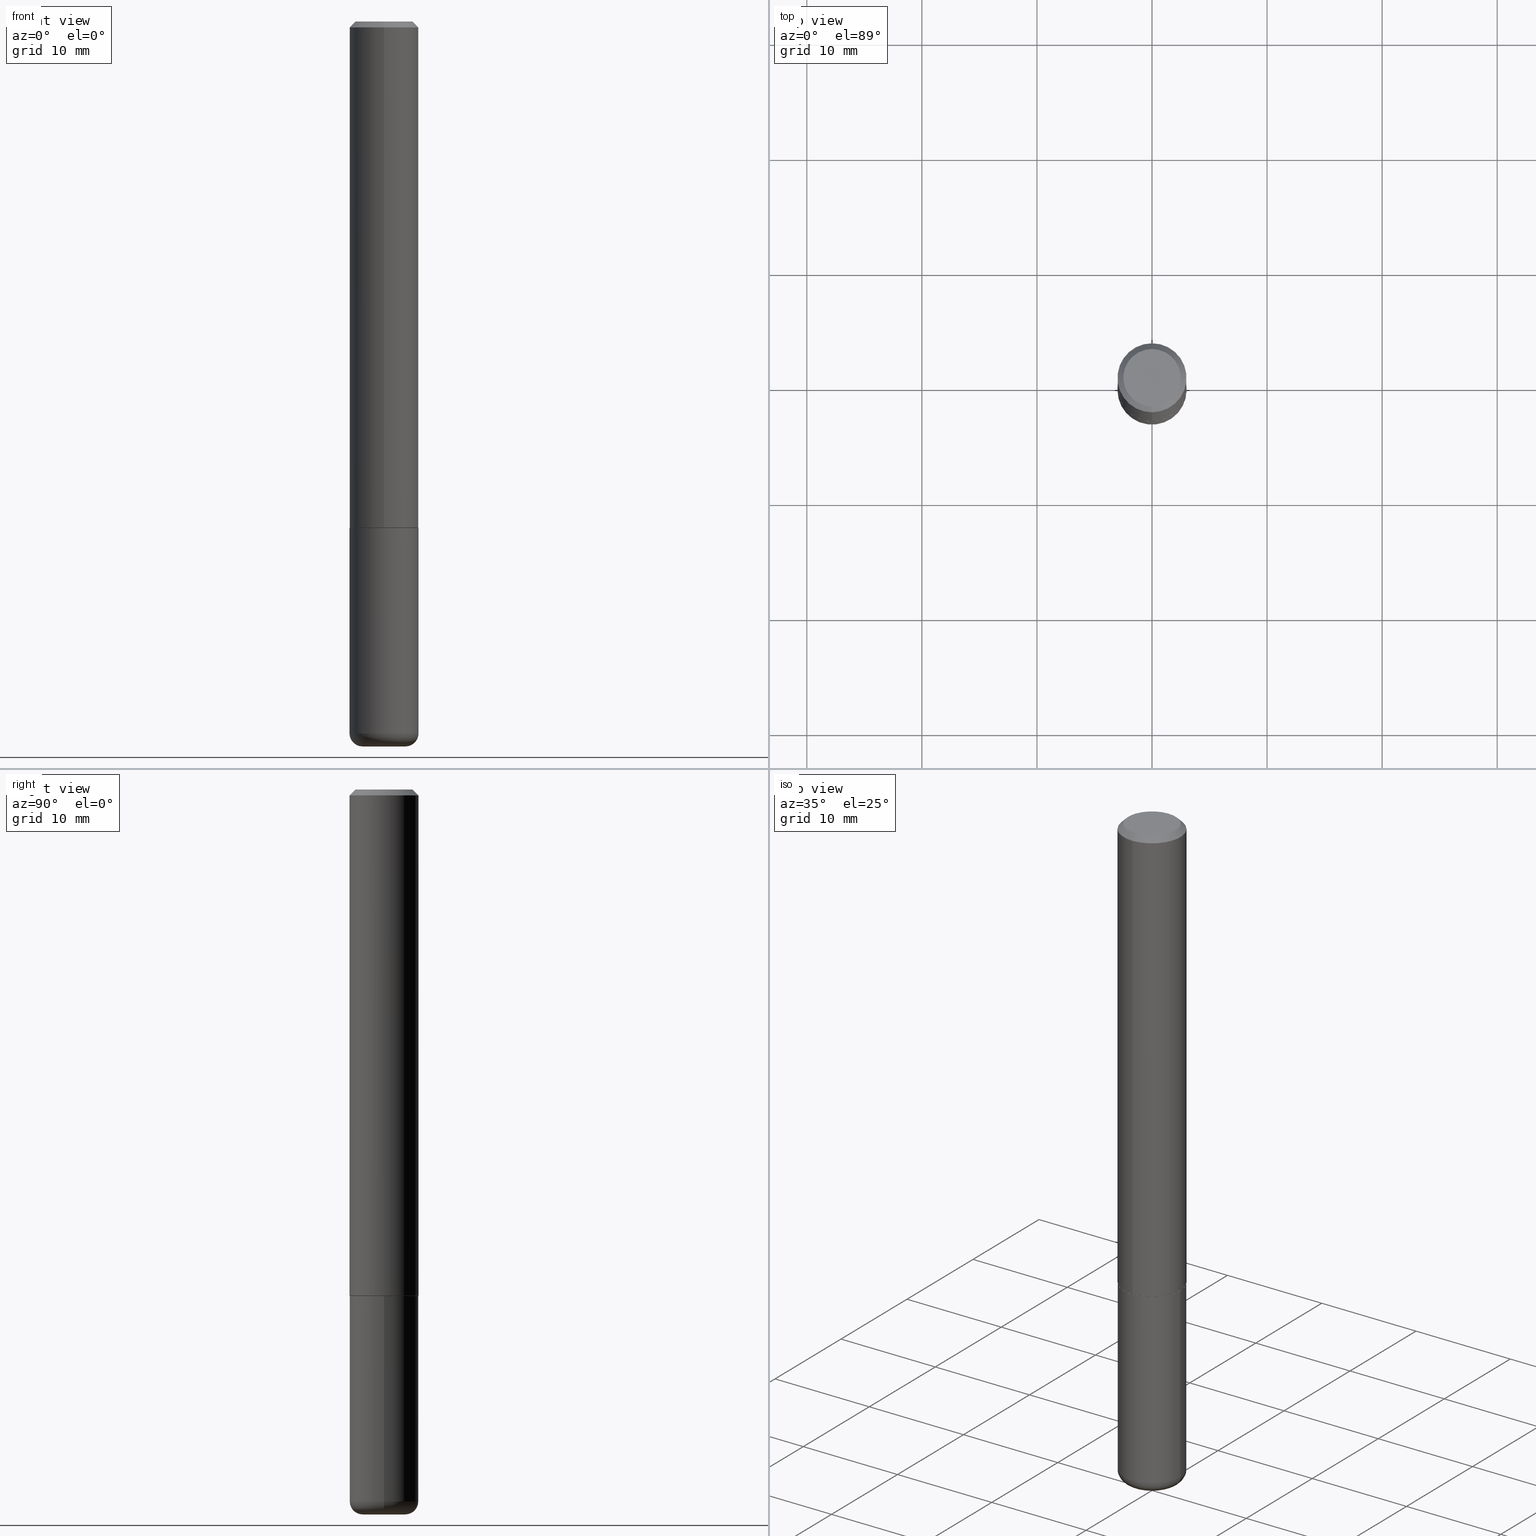
[diagram: canonical four-view strip — front | top / right | iso, engineering-drawing reading convention]
A machine part, canonical four-view strip (front | top / right | iso — engineering-drawing reading convention). The complete STEP part file that produces these views, byte-faithful:
ISO-10303-21;
HEADER;
FILE_DESCRIPTION (( 'STEP AP203' ),
    '1' );
FILE_NAME ('46107.STEP',
    '2024-03-04T16:53:47',
    ( '' ),
    ( '' ),
    'SwSTEP 2.0',
    'SolidWorks 2023',
    '' );
FILE_SCHEMA (( 'CONFIG_CONTROL_DESIGN' ));
ENDSEC;

DATA;
#1 = EDGE_CURVE ( 'NONE', #177, #316, #366, .T. ) ;
#2 = VERTEX_POINT ( 'NONE', #59 ) ;
#3 = EDGE_CURVE ( 'NONE', #177, #330, #373, .T. ) ;
#4 = CARTESIAN_POINT ( 'NONE',  ( 0.000000000000000000, 0.000000000000000000, 0.000000000000000000 ) ) ;
#5 = AXIS2_PLACEMENT_3D ( 'NONE', #404, #307, #309 ) ;
#6 = CIRCLE ( 'NONE', #187, 0.04490000000000033548 ) ;
#7 = APPROVAL_DATE_TIME ( #200, #198 ) ;
#8 = COORDINATED_UNIVERSAL_TIME_OFFSET ( 5, 0, .BEHIND. ) ;
#9 = ORIENTED_EDGE ( 'NONE', *, *, #171, .T. ) ;
#10 = EDGE_CURVE ( 'NONE', #330, #321, #289, .T. ) ;
#11 = DIRECTION ( 'NONE',  ( -2.449854300640825243E-29, 3.485201061175756275E-15, 1.000000000000000000 ) ) ;
#12 = AXIS2_PLACEMENT_3D ( 'NONE', #154, #347, #292 ) ;
#13 = DIRECTION ( 'NONE',  ( -2.445468806185136597E-29, 3.491481338843145583E-15, 1.000000000000000000 ) ) ;
#14 = CALENDAR_DATE ( 2024, 4, 3 ) ;
#15 = CIRCLE ( 'NONE', #241, 0.09809999999999993725 ) ;
#16 = ADVANCED_FACE ( 'NONE', ( #236 ), #342, .T. ) ;
#17 = EDGE_LOOP ( 'NONE', ( #294, #233, #215, #93 ) ) ;
#18 = LINE ( 'NONE', #238, #270 ) ;
#19 = EDGE_CURVE ( 'NONE', #189, #321, #412, .T. ) ;
#20 = CARTESIAN_POINT ( 'NONE',  ( 4.241432750699461520E-29, -6.033928597213587157E-15, -1.731300000000000283 ) ) ;
#21 = AXIS2_PLACEMENT_3D ( 'NONE', #217, #163, #185 ) ;
#22 = CARTESIAN_POINT ( 'NONE',  ( -6.862147577486463585E-29, -2.717304296441968841E-14, -2.480300000000000171 ) ) ;
#23 = CARTESIAN_POINT ( 'NONE',  ( -2.808359658214252321E-45, 3.995216392424341374E-31, 1.146337419935401982E-16 ) ) ;
#24 = ADVANCED_FACE ( 'NONE', ( #317 ), #286, .F. ) ;
#25 = VERTEX_POINT ( 'NONE', #322 ) ;
#26 = UNCERTAINTY_MEASURE_WITH_UNIT (LENGTH_MEASURE( 1.000000000000000082E-05 ), #197, 'distance_accuracy_value', 'NONE');
#27 = CARTESIAN_POINT ( 'NONE',  ( -8.177049295570191568E-16, -0.1171000000000060187, -1.732299999999999729 ) ) ;
#28 = PERSON_AND_ORGANIZATION_ROLE ( 'design_supplier' ) ;
#29 = CARTESIAN_POINT ( 'NONE',  ( 0.000000000000000000, 0.000000000000000000, 0.000000000000000000 ) ) ;
#30 = ORIENTED_EDGE ( 'NONE', *, *, #151, .F. ) ;
#31 = CARTESIAN_POINT ( 'NONE',  ( 4.899708601281666006E-31, -6.970402122351533307E-17, -0.02000000000000006287 ) ) ;
#32 = ORIENTED_EDGE ( 'NONE', *, *, #415, .T. ) ;
#33 = EDGE_CURVE ( 'NONE', #316, #177, #240, .T. ) ;
#34 = ORIENTED_EDGE ( 'NONE', *, *, #210, .F. ) ;
#35 = DIRECTION ( 'NONE',  ( 6.982962677686265922E-15, 1.000000000000000000, -3.485201061175756670E-15 ) ) ;
#36 = ORIENTED_EDGE ( 'NONE', *, *, #167, .F. ) ;
#37 = LINE ( 'NONE', #383, #174 ) ;
#38 = EDGE_LOOP ( 'NONE', ( #153, #130 ) ) ;
#39 = FACE_OUTER_BOUND ( 'NONE', #17, .T. ) ;
#40 = PRODUCT_DEFINITION ( 'UNKNOWN', '', #129, #276 ) ;
#41 = COORDINATED_UNIVERSAL_TIME_OFFSET ( 5, 0, .BEHIND. ) ;
#42 = ORIENTED_EDGE ( 'NONE', *, *, #272, .T. ) ;
#43 = CLOSED_SHELL ( 'NONE', ( #281, #156, #141, #331, #239, #16 ) ) ;
#44 = AXIS2_PLACEMENT_3D ( 'NONE', #327, #318, #323 ) ;
#45 = PERSON_AND_ORGANIZATION ( #178, #410 ) ;
#46 = CARTESIAN_POINT ( 'NONE',  ( 0.000000000000000000, 0.000000000000000000, 0.000000000000000000 ) ) ;
#47 = ORIENTED_EDGE ( 'NONE', *, *, #10, .T. ) ;
#48 = CYLINDRICAL_SURFACE ( 'NONE', #111, 0.1181000000000001354 ) ;
#49 = CARTESIAN_POINT ( 'NONE',  ( 0.1181000000000001632, -9.327841544853347056E-15, -2.435400000000000453 ) ) ;
#50 = EDGE_CURVE ( 'NONE', #348, #61, #399, .T. ) ;
#51 = CARTESIAN_POINT ( 'NONE',  ( -2.808359658214252321E-45, 3.995216392424341374E-31, 1.146337419935401982E-16 ) ) ;
#52 = AXIS2_PLACEMENT_3D ( 'NONE', #46, #401, #365 ) ;
#53 = EDGE_LOOP ( 'NONE', ( #300, #42, #36, #30 ) ) ;
#54 = ORIENTED_EDGE ( 'NONE', *, *, #19, .F. ) ;
#55 = ORIENTED_EDGE ( 'NONE', *, *, #363, .F. ) ;
#56 = DIRECTION ( 'NONE',  ( -4.851104656540953231E-15, -0.7071067811865484609, -0.7071067811865465735 ) ) ;
#57 = AXIS2_PLACEMENT_3D ( 'NONE', #29, #150, #96 ) ;
#58 = ADVANCED_FACE ( 'NONE', ( #418 ), #408, .T. ) ;
#59 = CARTESIAN_POINT ( 'NONE',  ( 8.355982572539207845E-16, 0.1170999999999939312, -1.732300000000000173 ) ) ;
#60 = CARTESIAN_POINT ( 'NONE',  ( 6.065496279980995876E-29, -8.659921164732656913E-15, -2.480300000000001059 ) ) ;
#61 = VERTEX_POINT ( 'NONE', #355 ) ;
#62 = AXIS2_PLACEMENT_3D ( 'NONE', #405, #389, #211 ) ;
#63 = ORIENTED_EDGE ( 'NONE', *, *, #144, .T. ) ;
#64 = CC_DESIGN_PERSON_AND_ORGANIZATION_ASSIGNMENT ( #109, #235, ( #129 ) ) ;
#65 = DIRECTION ( 'NONE',  ( 1.000000000000000000, -6.982962677686265133E-15, 0.000000000000000000 ) ) ;
#66 = EDGE_LOOP ( 'NONE', ( #55, #379 ) ) ;
#67 = DIRECTION ( 'NONE',  ( 2.449854300640825243E-29, -3.485201061175756275E-15, -1.000000000000000000 ) ) ;
#68 = COORDINATED_UNIVERSAL_TIME_OFFSET ( 5, 0, .BEHIND. ) ;
#69 = ORIENTED_EDGE ( 'NONE', *, *, #196, .F. ) ;
#70 = AXIS2_PLACEMENT_3D ( 'NONE', #183, #244, #377 ) ;
#71 = AXIS2_PLACEMENT_3D ( 'NONE', #376, #214, #88 ) ;
#72 = DIMENSIONAL_EXPONENTS ( 1.000000000000000000, 0.000000000000000000, 0.000000000000000000, 0.000000000000000000, 0.000000000000000000, 0.000000000000000000, 0.000000000000000000 ) ;
#73 = CALENDAR_DATE ( 2024, 4, 3 ) ;
#74 = PRODUCT ( '46107', '46107', '', ( #113 ) ) ;
#75 = EDGE_CURVE ( 'NONE', #2, #316, #37, .T. ) ;
#76 = ORIENTED_EDGE ( 'NONE', *, *, #167, .T. ) ;
#77 = DIRECTION ( 'NONE',  ( 1.000000000000000000, -6.982962677686261977E-15, 4.883557194083111780E-29 ) ) ;
#78 = FACE_OUTER_BOUND ( 'NONE', #132, .T. ) ;
#79 = FACE_OUTER_BOUND ( 'NONE', #182, .T. ) ;
#80 = AXIS2_PLACEMENT_3D ( 'NONE', #298, #173, #77 ) ;
#81 = APPROVAL ( #359, 'UNSPECIFIED' ) ;
#82 = ORIENTED_EDGE ( 'NONE', *, *, #210, .T. ) ;
#83 = DATE_TIME_ROLE ( 'creation_date' ) ;
#84 = CARTESIAN_POINT ( 'NONE',  ( 6.065496279980995876E-29, -8.659921164732656913E-15, -2.480300000000001059 ) ) ;
#85 = EDGE_CURVE ( 'NONE', #414, #102, #400, .T. ) ;
#86 = ORIENTED_EDGE ( 'NONE', *, *, #1, .F. ) ;
#87 = VECTOR ( 'NONE', #369, 39.37007874015748143 ) ;
#88 = DIRECTION ( 'NONE',  ( 1.000000000000000000, -6.982962677686273021E-15, 0.000000000000000000 ) ) ;
#89 = DIRECTION ( 'NONE',  ( -2.449854300640825243E-29, 3.485201061175756275E-15, 1.000000000000000000 ) ) ;
#90 = DIRECTION ( 'NONE',  ( -6.982962677686265922E-15, -1.000000000000000000, 2.332918867347791515E-15 ) ) ;
#91 = CIRCLE ( 'NONE', #313, 0.1180999999999999966 ) ;
#92 = CC_DESIGN_SECURITY_CLASSIFICATION ( #229, ( #129 ) ) ;
#93 = ORIENTED_EDGE ( 'NONE', *, *, #353, .T. ) ;
#94 = FACE_OUTER_BOUND ( 'NONE', #364, .T. ) ;
#95 = DIRECTION ( 'NONE',  ( -2.449854300640825243E-29, 3.485201061175756275E-15, 1.000000000000000000 ) ) ;
#96 = DIRECTION ( 'NONE',  ( 1.000000000000000000, -6.982962677686266711E-15, 4.876176775795936353E-29 ) ) ;
#97 = ORIENTED_EDGE ( 'NONE', *, *, #3, .F. ) ;
#98 = ADVANCED_FACE ( 'NONE', ( #157 ), #367, .T. ) ;
#99 = DIRECTION ( 'NONE',  ( 4.937700262164536998E-15, 0.7071067811865435759, -0.7071067811865514585 ) ) ;
#100 = DIRECTION ( 'NONE',  ( -2.449854300640825243E-29, 3.485201061175756275E-15, 1.000000000000000000 ) ) ;
#101 = EDGE_CURVE ( 'NONE', #212, #414, #334, .T. ) ;
#102 = VERTEX_POINT ( 'NONE', #357 ) ;
#103 = DIRECTION ( 'NONE',  ( 1.000000000000000000, -6.982962677686287221E-15, 0.000000000000000000 ) ) ;
#104 = PERSON_AND_ORGANIZATION_ROLE ( 'design_owner' ) ;
#105 = CONICAL_SURFACE ( 'NONE', #372, 0.1170999999999999819, 0.7853981633976704346 ) ;
#106 = LINE ( 'NONE', #199, #392 ) ;
#107 = ORIENTED_EDGE ( 'NONE', *, *, #101, .F. ) ;
#108 = PERSON_AND_ORGANIZATION ( #178, #410 ) ;
#109 = PERSON_AND_ORGANIZATION ( #178, #410 ) ;
#110 = VECTOR ( 'NONE', #99, 39.37007874015748143 ) ;
#111 = AXIS2_PLACEMENT_3D ( 'NONE', #4, #11, #332 ) ;
#112 = LINE ( 'NONE', #137, #87 ) ;
#113 = MECHANICAL_CONTEXT ( 'NONE', #209, 'mechanical' ) ;
#114 = CARTESIAN_POINT ( 'NONE',  ( -8.246878922347070446E-16, -0.1181000000000062417, -1.731299999999999617 ) ) ;
#115 = CIRCLE ( 'NONE', #71, 0.1180999999999999966 ) ;
#116 = MANIFOLD_SOLID_BREP ( 'Body-Move/Copy2[1]', #43 ) ;
#117 = EDGE_LOOP ( 'NONE', ( #69, #155, #47, #54 ) ) ;
#118 = DIRECTION ( 'NONE',  ( -2.445468806185136877E-29, 3.491481338843145188E-15, 1.000000000000000000 ) ) ;
#119 = CIRCLE ( 'NONE', #358, 0.1170999999999999819 ) ;
#120 = DIRECTION ( 'NONE',  ( -6.982962677686265922E-15, -1.000000000000000000, 3.485201061175756670E-15 ) ) ;
#121 = FACE_OUTER_BOUND ( 'NONE', #38, .T. ) ;
#122 = CC_DESIGN_DATE_AND_TIME_ASSIGNMENT ( #378, #319, ( #229 ) ) ;
#123 = VERTEX_POINT ( 'NONE', #27 ) ;
#124 = ORIENTED_EDGE ( 'NONE', *, *, #10, .F. ) ;
#125 = DIRECTION ( 'NONE',  ( -6.982962677686265922E-15, -1.000000000000000000, 2.332918867347791515E-15 ) ) ;
#126 = CARTESIAN_POINT ( 'NONE',  ( -0.1180999999999999966, -6.436572417015612133E-15, -1.732300000000000173 ) ) ;
#127 = CIRCLE ( 'NONE', #262, 0.07320000000000000118 ) ;
#128 = ORIENTED_EDGE ( 'NONE', *, *, #50, .T. ) ;
#129 = PRODUCT_DEFINITION_FORMATION_WITH_SPECIFIED_SOURCE ( 'ANY', '', #74, .NOT_KNOWN. ) ;
#130 = ORIENTED_EDGE ( 'NONE', *, *, #196, .T. ) ;
#131 = DIRECTION ( 'NONE',  ( -2.449854300640825243E-29, 3.485201061175756275E-15, 1.000000000000000000 ) ) ;
#132 = EDGE_LOOP ( 'NONE', ( #76, #128 ) ) ;
#133 = SECURITY_CLASSIFICATION_LEVEL ( 'unclassified' ) ;
#134 = ADVANCED_FACE ( 'NONE', ( #149 ), #277, .T. ) ;
#135 = APPROVAL_DATE_TIME ( #165, #81 ) ;
#136 = AXIS2_PLACEMENT_3D ( 'NONE', #51, #176, #305 ) ;
#137 = CARTESIAN_POINT ( 'NONE',  ( 0.1180999999999999966, -8.246878922347480654E-16, 5.758764772215000440E-30 ) ) ;
#138 = CC_DESIGN_PERSON_AND_ORGANIZATION_ASSIGNMENT ( #258, #228, ( #40 ) ) ;
#139 = COORDINATED_UNIVERSAL_TIME_OFFSET ( 5, 0, .BEHIND. ) ;
#140 = PERSON_AND_ORGANIZATION_ROLE ( 'classification_officer' ) ;
#141 = ADVANCED_FACE ( 'NONE', ( #78 ), #162, .F. ) ;
#142 = EDGE_LOOP ( 'NONE', ( #252, #287 ) ) ;
#143 = LINE ( 'NONE', #237, #188 ) ;
#144 = EDGE_CURVE ( 'NONE', #123, #177, #106, .T. ) ;
#145 = CARTESIAN_POINT ( 'NONE',  ( -8.246878922347489529E-16, -0.1181000000000001354, 4.116022453248573214E-16 ) ) ;
#146 = AXIS2_PLACEMENT_3D ( 'NONE', #409, #95, #120 ) ;
#147 = CARTESIAN_POINT ( 'NONE',  ( 4.243882605000101651E-29, -6.037413798274762511E-15, -1.732299999999999951 ) ) ;
#148 = DIRECTION ( 'NONE',  ( -2.449854300640825243E-29, 3.485201061175756275E-15, 1.000000000000000000 ) ) ;
#149 = FACE_OUTER_BOUND ( 'NONE', #312, .T. ) ;
#150 = DIRECTION ( 'NONE',  ( -2.445468806185136597E-29, 3.491481338843145583E-15, 1.000000000000000000 ) ) ;
#151 = EDGE_CURVE ( 'NONE', #414, #61, #112, .T. ) ;
#152 = CIRCLE ( 'NONE', #251, 0.1170999999999999819 ) ;
#153 = ORIENTED_EDGE ( 'NONE', *, *, #265, .T. ) ;
#154 = CARTESIAN_POINT ( 'NONE',  ( 4.243882605000101651E-29, -6.037413798274762511E-15, -1.732299999999999951 ) ) ;
#155 = ORIENTED_EDGE ( 'NONE', *, *, #207, .T. ) ;
#156 = ADVANCED_FACE ( 'NONE', ( #306 ), #385, .T. ) ;
#157 = FACE_OUTER_BOUND ( 'NONE', #117, .T. ) ;
#158 = AXIS2_PLACEMENT_3D ( 'NONE', #20, #89, #403 ) ;
#159 = EDGE_LOOP ( 'NONE', ( #161, #356, #86, #246 ) ) ;
#160 = APPROVAL_PERSON_ORGANIZATION ( #45, #406, #339 ) ;
#161 = ORIENTED_EDGE ( 'NONE', *, *, #363, .T. ) ;
#162 = PLANE ( 'NONE',  #62 ) ;
#163 = DIRECTION ( 'NONE',  ( 2.449854300640825243E-29, -3.485201061175756275E-15, -1.000000000000000000 ) ) ;
#164 = FACE_OUTER_BOUND ( 'NONE', #291, .T. ) ;
#165 = DATE_AND_TIME ( #297, #393 ) ;
#166 = VERTEX_POINT ( 'NONE', #301 ) ;
#167 = EDGE_CURVE ( 'NONE', #61, #348, #91, .T. ) ;
#168 = APPROVAL_DATE_TIME ( #361, #406 ) ;
#169 = LENGTH_MEASURE_WITH_UNIT ( LENGTH_MEASURE( 0.02539999999999999897 ), #371 );
#170 = ADVANCED_BREP_SHAPE_REPRESENTATION ( '46107', ( #116, #397, #52 ), #222 ) ;
#171 = EDGE_CURVE ( 'NONE', #166, #212, #127, .T. ) ;
#172 = DIRECTION ( 'NONE',  ( -2.449854300640825243E-29, 3.485201061175756670E-15, 1.000000000000000000 ) ) ;
#173 = DIRECTION ( 'NONE',  ( -2.445468806185136597E-29, 3.491481338843145583E-15, 1.000000000000000000 ) ) ;
#174 = VECTOR ( 'NONE', #320, 39.37007874015748854 ) ;
#175 = AXIS2_PLACEMENT_3D ( 'NONE', #60, #279, #411 ) ;
#176 = DIRECTION ( 'NONE',  ( -2.449854300640825243E-29, 3.485201061175756275E-15, 1.000000000000000000 ) ) ;
#177 = VERTEX_POINT ( 'NONE', #114 ) ;
#178 = PERSON ( 'UNSPECIFIED', 'UNSPECIFIED', 'UNSPECIFIED', ('UNSPECIFIED'), ('UNSPECIFIED'), ('UNSPECIFIED') ) ;
#179 = PRODUCT_RELATED_PRODUCT_CATEGORY ( 'detail', '', ( #74 ) ) ;
#180 = AXIS2_PLACEMENT_3D ( 'NONE', #402, #407, #374 ) ;
#181 = CARTESIAN_POINT ( 'NONE',  ( -0.07319999999999998730, -7.983036370042204364E-15, -2.435400000000000009 ) ) ;
#182 = EDGE_LOOP ( 'NONE', ( #248, #32, #124, #97 ) ) ;
#183 = CARTESIAN_POINT ( 'NONE',  ( 4.241432750699461520E-29, -6.033928597213587157E-15, -1.731300000000000283 ) ) ;
#184 = ORIENTED_EDGE ( 'NONE', *, *, #370, .T. ) ;
#185 = DIRECTION ( 'NONE',  ( 6.982962677686265922E-15, 1.000000000000000000, -3.469747663417776213E-15 ) ) ;
#186 = CLOSED_SHELL ( 'NONE', ( #205, #398, #98, #343, #134, #58, #24, #314 ) ) ;
#187 = AXIS2_PLACEMENT_3D ( 'NONE', #181, #310, #274 ) ;
#188 = VECTOR ( 'NONE', #56, 39.37007874015748143 ) ;
#189 = VERTEX_POINT ( 'NONE', #206 ) ;
#190 = DIRECTION ( 'NONE',  ( -1.000000000000000000, 6.982962677686265922E-15, -4.876176775795935793E-29 ) ) ;
#191 = DIRECTION ( 'NONE',  ( -6.982962677686265922E-15, -1.000000000000000000, 3.469747663417776213E-15 ) ) ;
#192 = CARTESIAN_POINT ( 'NONE',  ( 4.243882605000101651E-29, -6.037413798274762511E-15, -1.732299999999999951 ) ) ;
#193 = ORIENTED_EDGE ( 'NONE', *, *, #353, .F. ) ;
#194 = AXIS2_PLACEMENT_3D ( 'NONE', #416, #288, #103 ) ;
#195 = CC_DESIGN_APPROVAL ( #198, ( #129 ) ) ;
#196 = EDGE_CURVE ( 'NONE', #25, #189, #340, .T. ) ;
#197 =( CONVERSION_BASED_UNIT ( 'INCH', #169 ) LENGTH_UNIT ( ) NAMED_UNIT ( #72 ) );
#198 = APPROVAL ( #259, 'UNSPECIFIED' ) ;
#199 = CARTESIAN_POINT ( 'NONE',  ( -8.177049295570191568E-16, -0.1171000000000060187, -1.732299999999999729 ) ) ;
#200 = DATE_AND_TIME ( #73, #213 ) ;
#201 = AXIS2_PLACEMENT_3D ( 'NONE', #31, #284, #191 ) ;
#202 = PERSON_AND_ORGANIZATION ( #178, #410 ) ;
#203 = CC_DESIGN_APPROVAL ( #81, ( #40 ) ) ;
#204 = DIRECTION ( 'NONE',  ( 1.000000000000000000, -6.982962677686265133E-15, 0.000000000000000000 ) ) ;
#205 = ADVANCED_FACE ( 'NONE', ( #267 ), #105, .T. ) ;
#206 = CARTESIAN_POINT ( 'NONE',  ( 7.548582654578854574E-16, 0.09809999999999993725, -2.272644821078012847E-16 ) ) ;
#207 = EDGE_CURVE ( 'NONE', #25, #330, #143, .T. ) ;
#208 = LOCAL_TIME ( 11, 53, 47.00000000000000000, #139 ) ;
#209 = APPLICATION_CONTEXT ( 'configuration controlled 3d designs of mechanical parts and assemblies' ) ;
#210 = EDGE_CURVE ( 'NONE', #166, #102, #6, .T. ) ;
#211 = DIRECTION ( 'NONE',  ( -1.000000000000000000, 6.982962677686265922E-15, -4.876176775795935793E-29 ) ) ;
#212 = VERTEX_POINT ( 'NONE', #268 ) ;
#213 = LOCAL_TIME ( 11, 53, 47.00000000000000000, #362 ) ;
#214 = DIRECTION ( 'NONE',  ( -2.445468806185136597E-29, 3.491481338843145583E-15, 1.000000000000000000 ) ) ;
#215 = ORIENTED_EDGE ( 'NONE', *, *, #19, .T. ) ;
#216 = DIRECTION ( 'NONE',  ( 6.982962677686265922E-15, 1.000000000000000000, -3.469747663417776213E-15 ) ) ;
#217 = CARTESIAN_POINT ( 'NONE',  ( 4.899708601281666006E-31, -6.970402122351533307E-17, -0.02000000000000006287 ) ) ;
#218 = AXIS2_PLACEMENT_3D ( 'NONE', #311, #67, #216 ) ;
#219 = CARTESIAN_POINT ( 'NONE',  ( 5.955694730583282706E-29, -8.503153652618598793E-15, -2.435400000000000453 ) ) ;
#220 = CARTESIAN_POINT ( 'NONE',  ( -8.102248135368175393E-16, -0.1181000000000001077, -0.01999999999999965347 ) ) ;
#221 = AXIS2_PLACEMENT_3D ( 'NONE', #192, #131, #125 ) ;
#222 =( GEOMETRIC_REPRESENTATION_CONTEXT ( 3 ) GLOBAL_UNCERTAINTY_ASSIGNED_CONTEXT ( ( #26 ) ) GLOBAL_UNIT_ASSIGNED_CONTEXT ( ( #197, #255, #368 ) ) REPRESENTATION_CONTEXT ( 'NONE', 'WORKASPACE' ) );
#223 = LOCAL_TIME ( 11, 53, 47.00000000000000000, #8 ) ;
#224 = ORIENTED_EDGE ( 'NONE', *, *, #85, .F. ) ;
#225 = APPROVAL_ROLE ( '' ) ;
#226 = PERSON_AND_ORGANIZATION ( #178, #410 ) ;
#227 = CARTESIAN_POINT ( 'NONE',  ( 4.236285612954512953E-29, -6.048293123277982656E-15, -1.732300000000000173 ) ) ;
#228 = PERSON_AND_ORGANIZATION_ROLE ( 'creator' ) ;
#229 = SECURITY_CLASSIFICATION ( '', '', #133 ) ;
#230 = CARTESIAN_POINT ( 'NONE',  ( 8.391509709326791832E-16, 0.1181000000000001354, -4.116022453248573214E-16 ) ) ;
#231 = CYLINDRICAL_SURFACE ( 'NONE', #44, 0.1180999999999999966 ) ;
#232 = VECTOR ( 'NONE', #271, 39.37007874015748143 ) ;
#233 = ORIENTED_EDGE ( 'NONE', *, *, #265, .F. ) ;
#234 = CARTESIAN_POINT ( 'NONE',  ( 6.850286386810222579E-16, 0.09809999999999993725, -2.845813531045713469E-16 ) ) ;
#235 = PERSON_AND_ORGANIZATION_ROLE ( 'creator' ) ;
#236 = FACE_OUTER_BOUND ( 'NONE', #142, .T. ) ;
#237 = CARTESIAN_POINT ( 'NONE',  ( -8.102248135368175393E-16, -0.1181000000000001077, -0.01999999999999965347 ) ) ;
#238 = CARTESIAN_POINT ( 'NONE',  ( -0.1180999999999999966, 8.391509709326782957E-16, -5.809262341591043784E-30 ) ) ;
#239 = ADVANCED_FACE ( 'NONE', ( #94 ), #325, .T. ) ;
#240 = CIRCLE ( 'NONE', #70, 0.1181000000000002187 ) ;
#241 = AXIS2_PLACEMENT_3D ( 'NONE', #23, #148, #275 ) ;
#242 = CYLINDRICAL_SURFACE ( 'NONE', #57, 0.1180999999999999966 ) ;
#243 = PERSON_AND_ORGANIZATION ( #178, #410 ) ;
#244 = DIRECTION ( 'NONE',  ( -2.449854300640825243E-29, 3.485201061175756275E-15, 1.000000000000000000 ) ) ;
#245 = PLANE ( 'NONE',  #417 ) ;
#246 = ORIENTED_EDGE ( 'NONE', *, *, #144, .F. ) ;
#247 = APPLICATION_CONTEXT ( 'configuration controlled 3d designs of mechanical parts and assemblies' ) ;
#248 = ORIENTED_EDGE ( 'NONE', *, *, #1, .T. ) ;
#249 = CC_DESIGN_PERSON_AND_ORGANIZATION_ASSIGNMENT ( #226, #140, ( #229 ) ) ;
#250 = DIRECTION ( 'NONE',  ( -2.445468806185136597E-29, 3.491481338843145583E-15, 1.000000000000000000 ) ) ;
#251 = AXIS2_PLACEMENT_3D ( 'NONE', #384, #336, #295 ) ;
#252 = ORIENTED_EDGE ( 'NONE', *, *, #296, .F. ) ;
#253 = DIRECTION ( 'NONE',  ( 1.000000000000000000, -6.982962677686273021E-15, 0.000000000000000000 ) ) ;
#254 = ORIENTED_EDGE ( 'NONE', *, *, #293, .T. ) ;
#255 =( NAMED_UNIT ( * ) PLANE_ANGLE_UNIT ( ) SI_UNIT ( $, .RADIAN. ) );
#256 = ORIENTED_EDGE ( 'NONE', *, *, #272, .F. ) ;
#257 = LOCAL_TIME ( 11, 53, 47.00000000000000000, #68 ) ;
#258 = PERSON_AND_ORGANIZATION ( #178, #410 ) ;
#259 = APPROVAL_STATUS ( 'not_yet_approved' ) ;
#260 = DIRECTION ( 'NONE',  ( -2.445468806185136597E-29, 3.491481338843145583E-15, 1.000000000000000000 ) ) ;
#261 = CC_DESIGN_PERSON_AND_ORGANIZATION_ASSIGNMENT ( #243, #28, ( #129 ) ) ;
#262 = AXIS2_PLACEMENT_3D ( 'NONE', #84, #13, #264 ) ;
#263 = LINE ( 'NONE', #230, #344 ) ;
#264 = DIRECTION ( 'NONE',  ( 1.000000000000000000, -6.982962677686258033E-15, 0.000000000000000000 ) ) ;
#265 = EDGE_CURVE ( 'NONE', #189, #25, #15, .T. ) ;
#266 = ORIENTED_EDGE ( 'NONE', *, *, #3, .T. ) ;
#267 = FACE_OUTER_BOUND ( 'NONE', #159, .T. ) ;
#268 = CARTESIAN_POINT ( 'NONE',  ( 0.07320000000000000118, -9.171074032739290513E-15, -2.480300000000001059 ) ) ;
#269 = AXIS2_PLACEMENT_3D ( 'NONE', #22, #273, #190 ) ;
#270 = VECTOR ( 'NONE', #118, 39.37007874015748143 ) ;
#271 = DIRECTION ( 'NONE',  ( -2.449854300640825243E-29, 3.485201061175756670E-15, 1.000000000000000000 ) ) ;
#272 = EDGE_CURVE ( 'NONE', #102, #348, #18, .T. ) ;
#273 = DIRECTION ( 'NONE',  ( 2.438088387897960049E-29, -3.491481338843145188E-15, -1.000000000000000000 ) ) ;
#274 = DIRECTION ( 'NONE',  ( -1.000000000000000000, 7.105427357601009747E-15, 0.000000000000000000 ) ) ;
#275 = DIRECTION ( 'NONE',  ( -6.982962677686265922E-15, -1.000000000000000000, 3.485201061175755486E-15 ) ) ;
#276 = DESIGN_CONTEXT ( 'detailed design', #247, 'design' ) ;
#277 = CYLINDRICAL_SURFACE ( 'NONE', #146, 0.1181000000000001354 ) ;
#278 = CONICAL_SURFACE ( 'NONE', #21, 0.1181000000000000383, 0.7853981633974461696 ) ;
#279 = DIRECTION ( 'NONE',  ( -2.445468806185136597E-29, 3.491481338843145583E-15, 1.000000000000000000 ) ) ;
#280 = APPROVAL_PERSON_ORGANIZATION ( #108, #198, #225 ) ;
#281 = ADVANCED_FACE ( 'NONE', ( #375 ), #242, .T. ) ;
#282 = ORIENTED_EDGE ( 'NONE', *, *, #33, .F. ) ;
#283 = DIRECTION ( 'NONE',  ( -2.445468806185136597E-29, 3.491481338843145583E-15, 1.000000000000000000 ) ) ;
#284 = DIRECTION ( 'NONE',  ( -2.449854300640825243E-29, 3.485201061175756275E-15, 1.000000000000000000 ) ) ;
#285 = CC_DESIGN_PERSON_AND_ORGANIZATION_ASSIGNMENT ( #390, #104, ( #74 ) ) ;
#286 = PLANE ( 'NONE',  #12 ) ;
#287 = ORIENTED_EDGE ( 'NONE', *, *, #171, .F. ) ;
#288 = DIRECTION ( 'NONE',  ( -6.982962677686266711E-15, -1.000000000000000000, 3.491481338843145583E-15 ) ) ;
#289 = CIRCLE ( 'NONE', #180, 0.1181000000000000383 ) ;
#290 = AXIS2_PLACEMENT_3D ( 'NONE', #219, #283, #253 ) ;
#291 = EDGE_LOOP ( 'NONE', ( #256, #254, #354, #360 ) ) ;
#292 = DIRECTION ( 'NONE',  ( -6.982962677686265922E-15, -1.000000000000000000, 3.485201061175756670E-15 ) ) ;
#293 = EDGE_CURVE ( 'NONE', #102, #414, #115, .T. ) ;
#294 = ORIENTED_EDGE ( 'NONE', *, *, #207, .F. ) ;
#295 = DIRECTION ( 'NONE',  ( -6.982962677686265922E-15, -1.000000000000000000, 2.332918867347791515E-15 ) ) ;
#296 = EDGE_CURVE ( 'NONE', #212, #166, #350, .T. ) ;
#297 = CALENDAR_DATE ( 2024, 4, 3 ) ;
#298 = CARTESIAN_POINT ( 'NONE',  ( 5.955694730583281585E-29, -8.503153652618597215E-15, -2.435400000000000009 ) ) ;
#299 = CC_DESIGN_DATE_AND_TIME_ASSIGNMENT ( #394, #83, ( #40 ) ) ;
#300 = ORIENTED_EDGE ( 'NONE', *, *, #85, .T. ) ;
#301 = CARTESIAN_POINT ( 'NONE',  ( -0.07320000000000000118, -7.901903281921091934E-15, -2.480300000000001059 ) ) ;
#302 = SHAPE_DEFINITION_REPRESENTATION ( #386, #170 ) ;
#303 = AXIS2_PLACEMENT_3D ( 'NONE', #380, #250, #65 ) ;
#304 = CIRCLE ( 'NONE', #201, 0.1181000000000000383 ) ;
#305 = DIRECTION ( 'NONE',  ( -6.982962677686265922E-15, -1.000000000000000000, 3.485201061175755486E-15 ) ) ;
#306 = FACE_OUTER_BOUND ( 'NONE', #308, .T. ) ;
#307 = DIRECTION ( 'NONE',  ( -2.445468806185136597E-29, 3.491481338843145583E-15, 1.000000000000000000 ) ) ;
#308 = EDGE_LOOP ( 'NONE', ( #341, #82, #224, #107 ) ) ;
#309 = DIRECTION ( 'NONE',  ( 1.000000000000000000, -6.982962677686261977E-15, 4.883557194083111780E-29 ) ) ;
#310 = DIRECTION ( 'NONE',  ( 7.105427357601001859E-15, 1.000000000000000000, -3.491481338843145583E-15 ) ) ;
#311 = CARTESIAN_POINT ( 'NONE',  ( 4.899708601281666006E-31, -6.970402122351533307E-17, -0.02000000000000006287 ) ) ;
#312 = EDGE_LOOP ( 'NONE', ( #329, #391, #266, #193 ) ) ;
#313 = AXIS2_PLACEMENT_3D ( 'NONE', #227, #260, #204 ) ;
#314 = ADVANCED_FACE ( 'NONE', ( #121 ), #245, .F. ) ;
#315 = APPROVAL_PERSON_ORGANIZATION ( #202, #81, #328 ) ;
#316 = VERTEX_POINT ( 'NONE', #324 ) ;
#317 = FACE_OUTER_BOUND ( 'NONE', #66, .T. ) ;
#318 = DIRECTION ( 'NONE',  ( -2.445468806185136597E-29, 3.491481338843145583E-15, 1.000000000000000000 ) ) ;
#319 = DATE_TIME_ROLE ( 'classification_date' ) ;
#320 = DIRECTION ( 'NONE',  ( 5.024295867789177050E-15, 0.7071067811867068897, 0.7071067811863879227 ) ) ;
#321 = VERTEX_POINT ( 'NONE', #387 ) ;
#322 = CARTESIAN_POINT ( 'NONE',  ( -7.416198335591022079E-16, -0.09809999999999993725, 4.565319660948817305E-16 ) ) ;
#323 = DIRECTION ( 'NONE',  ( 1.000000000000000000, -6.982962677686266711E-15, 4.876176775795936353E-29 ) ) ;
#324 = CARTESIAN_POINT ( 'NONE',  ( 8.391509709327008768E-16, 0.1180999999999941957, -1.731300000000000727 ) ) ;
#325 = TOROIDAL_SURFACE ( 'NONE', #5, 0.07319999999999998730, 0.04490000000000033548 ) ;
#326 = CALENDAR_DATE ( 2024, 4, 3 ) ;
#327 = CARTESIAN_POINT ( 'NONE',  ( 0.000000000000000000, 0.000000000000000000, 0.000000000000000000 ) ) ;
#328 = APPROVAL_ROLE ( '' ) ;
#329 = ORIENTED_EDGE ( 'NONE', *, *, #415, .F. ) ;
#330 = VERTEX_POINT ( 'NONE', #220 ) ;
#331 = ADVANCED_FACE ( 'NONE', ( #164 ), #231, .T. ) ;
#332 = DIRECTION ( 'NONE',  ( -6.982962677686265922E-15, -1.000000000000000000, 3.485201061175756670E-15 ) ) ;
#333 = DIRECTION ( 'NONE',  ( -4.937700262165644559E-15, -0.7071067811867021158, 0.7071067811863929187 ) ) ;
#334 = CIRCLE ( 'NONE', #194, 0.04490000000000033548 ) ;
#335 = APPLICATION_PROTOCOL_DEFINITION ( 'international standard', 'config_control_design', 1994, #247 ) ;
#336 = DIRECTION ( 'NONE',  ( -2.449854300640825243E-29, 3.485201061175756275E-15, 1.000000000000000000 ) ) ;
#337 = APPROVAL_STATUS ( 'not_yet_approved' ) ;
#338 = ORIENTED_EDGE ( 'NONE', *, *, #101, .T. ) ;
#339 = APPROVAL_ROLE ( '' ) ;
#340 = CIRCLE ( 'NONE', #136, 0.09809999999999993725 ) ;
#341 = ORIENTED_EDGE ( 'NONE', *, *, #296, .T. ) ;
#342 = PLANE ( 'NONE',  #269 ) ;
#343 = ADVANCED_FACE ( 'NONE', ( #39 ), #278, .T. ) ;
#344 = VECTOR ( 'NONE', #172, 39.37007874015748143 ) ;
#345 = DIRECTION ( 'NONE',  ( -2.449854300640825243E-29, 3.485201061175756275E-15, 1.000000000000000000 ) ) ;
#346 = ORIENTED_EDGE ( 'NONE', *, *, #75, .F. ) ;
#347 = DIRECTION ( 'NONE',  ( -2.449854300640824683E-29, 3.485201061175756670E-15, 1.000000000000000000 ) ) ;
#348 = VERTEX_POINT ( 'NONE', #126 ) ;
#349 = DIRECTION ( 'NONE',  ( -6.982962677686265922E-15, -1.000000000000000000, 2.332918867347791515E-15 ) ) ;
#350 = CIRCLE ( 'NONE', #175, 0.07320000000000000118 ) ;
#351 = CC_DESIGN_APPROVAL ( #406, ( #229 ) ) ;
#352 = CARTESIAN_POINT ( 'NONE',  ( 8.246878922347486570E-16, 0.1180999999999999689, -0.02000000000000047226 ) ) ;
#353 = EDGE_CURVE ( 'NONE', #321, #330, #304, .T. ) ;
#354 = ORIENTED_EDGE ( 'NONE', *, *, #151, .T. ) ;
#355 = CARTESIAN_POINT ( 'NONE',  ( 0.1180999999999999966, -6.872981015512730130E-15, -1.732300000000000173 ) ) ;
#356 = ORIENTED_EDGE ( 'NONE', *, *, #75, .T. ) ;
#357 = CARTESIAN_POINT ( 'NONE',  ( -0.1181000000000001632, -7.664002681685918229E-15, -2.435400000000000453 ) ) ;
#358 = AXIS2_PLACEMENT_3D ( 'NONE', #413, #100, #349 ) ;
#359 = APPROVAL_STATUS ( 'not_yet_approved' ) ;
#360 = ORIENTED_EDGE ( 'NONE', *, *, #50, .F. ) ;
#361 = DATE_AND_TIME ( #14, #223 ) ;
#362 = COORDINATED_UNIVERSAL_TIME_OFFSET ( 5, 0, .BEHIND. ) ;
#363 = EDGE_CURVE ( 'NONE', #123, #2, #119, .T. ) ;
#364 = EDGE_LOOP ( 'NONE', ( #34, #9, #338, #382 ) ) ;
#365 = DIRECTION ( 'NONE',  ( 1.000000000000000000, 0.000000000000000000, 0.000000000000000000 ) ) ;
#366 = CIRCLE ( 'NONE', #158, 0.1181000000000002187 ) ;
#367 = CONICAL_SURFACE ( 'NONE', #218, 0.1181000000000000383, 0.7853981633974461696 ) ;
#368 =( NAMED_UNIT ( * ) SI_UNIT ( $, .STERADIAN. ) SOLID_ANGLE_UNIT ( ) );
#369 = DIRECTION ( 'NONE',  ( -2.445468806185136877E-29, 3.491481338843145188E-15, 1.000000000000000000 ) ) ;
#370 = EDGE_CURVE ( 'NONE', #2, #123, #152, .T. ) ;
#371 =( LENGTH_UNIT ( ) NAMED_UNIT ( * ) SI_UNIT ( $, .METRE. ) );
#372 = AXIS2_PLACEMENT_3D ( 'NONE', #147, #345, #90 ) ;
#373 = LINE ( 'NONE', #145, #232 ) ;
#374 = DIRECTION ( 'NONE',  ( -6.982962677686265922E-15, -1.000000000000000000, 3.469747663417776213E-15 ) ) ;
#375 = FACE_OUTER_BOUND ( 'NONE', #53, .T. ) ;
#376 = CARTESIAN_POINT ( 'NONE',  ( 5.955694730583282706E-29, -8.503153652618598793E-15, -2.435400000000000453 ) ) ;
#377 = DIRECTION ( 'NONE',  ( -6.982962677686265922E-15, -1.000000000000000000, 4.626330217890360659E-15 ) ) ;
#378 = DATE_AND_TIME ( #326, #257 ) ;
#379 = ORIENTED_EDGE ( 'NONE', *, *, #370, .F. ) ;
#380 = CARTESIAN_POINT ( 'NONE',  ( 4.236285612954512953E-29, -6.048293123277982656E-15, -1.732300000000000173 ) ) ;
#381 = DIRECTION ( 'NONE',  ( 2.449854300640824683E-29, -3.485201061175756670E-15, -1.000000000000000000 ) ) ;
#382 = ORIENTED_EDGE ( 'NONE', *, *, #293, .F. ) ;
#383 = CARTESIAN_POINT ( 'NONE',  ( 8.320455435751194916E-16, 0.1170999999999939312, -1.732300000000000173 ) ) ;
#384 = CARTESIAN_POINT ( 'NONE',  ( 4.243882605000101651E-29, -6.037413798274762511E-15, -1.732299999999999951 ) ) ;
#385 = TOROIDAL_SURFACE ( 'NONE', #80, 0.07319999999999998730, 0.04490000000000033548 ) ;
#386 = PRODUCT_DEFINITION_SHAPE ( 'NONE', 'NONE',  #40 ) ;
#387 = CARTESIAN_POINT ( 'NONE',  ( 8.246878922347486570E-16, 0.1180999999999999689, -0.02000000000000047226 ) ) ;
#388 = EDGE_LOOP ( 'NONE', ( #346, #184, #63, #282 ) ) ;
#389 = DIRECTION ( 'NONE',  ( 2.438088387897960049E-29, -3.491481338843145188E-15, -1.000000000000000000 ) ) ;
#390 = PERSON_AND_ORGANIZATION ( #178, #410 ) ;
#391 = ORIENTED_EDGE ( 'NONE', *, *, #33, .T. ) ;
#392 = VECTOR ( 'NONE', #333, 39.37007874015748143 ) ;
#393 = LOCAL_TIME ( 11, 53, 47.00000000000000000, #41 ) ;
#394 = DATE_AND_TIME ( #395, #208 ) ;
#395 = CALENDAR_DATE ( 2024, 4, 3 ) ;
#396 = APPLICATION_PROTOCOL_DEFINITION ( 'international standard', 'config_control_design', 1994, #209 ) ;
#397 = MANIFOLD_SOLID_BREP ( 'Body-Move/Copy2[2]', #186 ) ;
#398 = ADVANCED_FACE ( 'NONE', ( #79 ), #48, .T. ) ;
#399 = CIRCLE ( 'NONE', #303, 0.1180999999999999966 ) ;
#400 = CIRCLE ( 'NONE', #290, 0.1180999999999999966 ) ;
#401 = DIRECTION ( 'NONE',  ( 0.000000000000000000, 0.000000000000000000, 1.000000000000000000 ) ) ;
#402 = CARTESIAN_POINT ( 'NONE',  ( 4.899708601281666006E-31, -6.970402122351533307E-17, -0.02000000000000006287 ) ) ;
#403 = DIRECTION ( 'NONE',  ( -6.982962677686265922E-15, -1.000000000000000000, 4.626330217890360659E-15 ) ) ;
#404 = CARTESIAN_POINT ( 'NONE',  ( 5.955694730583281585E-29, -8.503153652618597215E-15, -2.435400000000000009 ) ) ;
#405 = CARTESIAN_POINT ( 'NONE',  ( 4.236285612954512953E-29, -6.048293123277982656E-15, -1.732300000000000173 ) ) ;
#406 = APPROVAL ( #337, 'UNSPECIFIED' ) ;
#407 = DIRECTION ( 'NONE',  ( -2.449854300640825243E-29, 3.485201061175756275E-15, 1.000000000000000000 ) ) ;
#408 = CONICAL_SURFACE ( 'NONE', #221, 0.1170999999999999819, 0.7853981633976704346 ) ;
#409 = CARTESIAN_POINT ( 'NONE',  ( 0.000000000000000000, 0.000000000000000000, 0.000000000000000000 ) ) ;
#410 = ORGANIZATION ( 'UNSPECIFIED', 'UNSPECIFIED', '' ) ;
#411 = DIRECTION ( 'NONE',  ( 1.000000000000000000, -6.982962677686258033E-15, 0.000000000000000000 ) ) ;
#412 = LINE ( 'NONE', #352, #110 ) ;
#413 = CARTESIAN_POINT ( 'NONE',  ( 4.243882605000101651E-29, -6.037413798274762511E-15, -1.732299999999999951 ) ) ;
#414 = VERTEX_POINT ( 'NONE', #49 ) ;
#415 = EDGE_CURVE ( 'NONE', #316, #321, #263, .T. ) ;
#416 = CARTESIAN_POINT ( 'NONE',  ( 0.07319999999999998730, -9.014306520625232393E-15, -2.435400000000000009 ) ) ;
#417 = AXIS2_PLACEMENT_3D ( 'NONE', #234, #381, #35 ) ;
#418 = FACE_OUTER_BOUND ( 'NONE', #388, .T. ) ;
ENDSEC;
END-ISO-10303-21;
